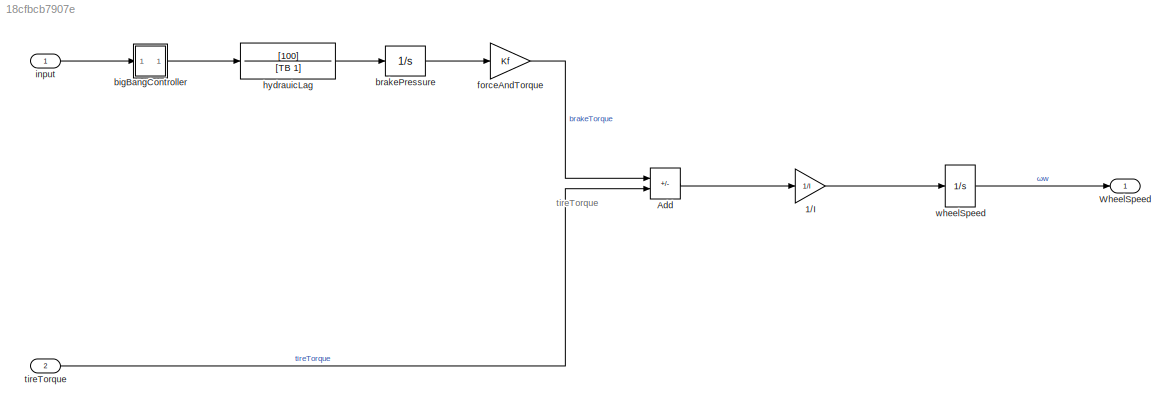
MODEL slx_18cfbcb7907e
KIND model
CONFIG AbsTol = 1e-6
CONFIG EnableMultiTasking = off
CONFIG FixedStep = auto
CONFIG InitFcn = g = 32.18;\nv0 = 88;\nRr = 15/12;  \nKf = 1;\nm = 50;\nPBmax = 1500;\nTB = 0.01;\nI = 5;\n\nslip = (0:.05:1.0); \nmu = [0 .4 .8 .97 1.0 .98 .96 .94 .92 .9 .88 .855 .83 .81 .79 .77 .75 .73 .72 .71 .7];\nctrl = 1;
CONFIG MaxStep = 0.01
CONFIG MinStep = auto
CONFIG PostLoadFcn = g = 32.18;\nv0 = 88;\nRr = 15/12;  \nKf = 1;\nm = 50;\nPBmax = 1500;\nTB = 0.01;\nI = 5;\n\nslip = (0:.05:1.0); \nmu = [0 .4 .8 .97 1.0 .98 .96 .94 .92 .9 .88 .855 .83 .81 .79 .77 .75 .73 .72 .71 .7];\nctrl = 1;
CONFIG RelTol = 1e-3
CONFIG SampleTimeConstraint = Unconstrained
CONFIG SolverName = ode45
CONFIG StartTime = 0.0
CONFIG StopTime = 25
BLOCK [Gain] 1//I
  Gain = 1/I
  OutDataTypeStr = Inherit: Same as input
  ParamDataTypeStr = Inherit: Same as input
  SaturateOnIntegerOverflow = on
BLOCK [Sum] Add
  IconShape = rectangular
  Inputs = -+
  Ports = [2, 1]
BLOCK [Outport] WheelSpeed
  OutDataTypeStr = double
  PortDimensions = 1
  SampleTime = 0
  SamplingMode = Sample based
  SignalType = real
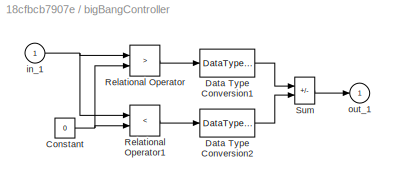
BLOCK [SubSystem] bigBangController
  Ports = [1, 1]
  RequestExecContextInheritance = off
  ShowPortLabels = none
BLOCK [Constant] bigBangController/Constant
  Value = 0
BLOCK [DataTypeConversion] bigBangController/Data Type Conversion1
  OutDataTypeStr = double
BLOCK [DataTypeConversion] bigBangController/Data Type Conversion2
  OutDataTypeStr = double
BLOCK [RelationalOperator] bigBangController/Relational Operator
  Operator = >
  OutDataTypeStr = boolean
  Ports = [2, 1]
BLOCK [RelationalOperator] bigBangController/Relational Operator1
  Operator = <
  OutDataTypeStr = boolean
  Ports = [2, 1]
BLOCK [Sum] bigBangController/Sum
  IconShape = rectangular
  InputSameDT = on
  Inputs = +-
  OutDataTypeStr = Inherit: Same as first input
  Ports = [2, 1]
  SaturateOnIntegerOverflow = on
BLOCK [Inport] bigBangController/in_1
BLOCK [Outport] bigBangController/out_1
  InitialOutput = 0
  VectorParamsAs1DForOutWhenUnconnected = off
BLOCK [Integrator] brakePressure
  LimitOutput = on
  LowerSaturationLimit = 0
  Ports = [1, 1]
  UpperSaturationLimit = PBmax
BLOCK [Gain] forceAndTorque
  Gain = Kf
  OutDataTypeStr = Inherit: Same as input
  ParamDataTypeStr = Inherit: Same as input
  SaturateOnIntegerOverflow = on
BLOCK [TransferFcn] hydrauicLag
  Denominator = [TB 1]
  Numerator = [100]
BLOCK [Inport] input
  OutDataTypeStr = double
  PortDimensions = 1
  SampleTime = 0
  SamplingMode = Sample based
  SignalType = real
BLOCK [Inport] tireTorque
  OutDataTypeStr = double
  Port = 2
  PortDimensions = 1
  SampleTime = 0
  SamplingMode = Sample based
  SignalType = real
BLOCK [Integrator] wheelSpeed
  InitialCondition = v0/Rr
  LimitOutput = on
  LowerSaturationLimit = 0
  Ports = [1, 1]
  UpperSaturationLimit = 1000
ANNOTATION (root): tireTorque
LINE 1//I:1 -> wheelSpeed:1
LINE Add:1 -> 1//I:1
NET bigBangController/Constant:1 -> bigBangController/Relational Operator1:2, bigBangController/Relational Operator:2
LINE bigBangController/Data Type Conversion1:1 -> bigBangController/Sum:1
LINE bigBangController/Data Type Conversion2:1 -> bigBangController/Sum:2
LINE bigBangController/Relational Operator1:1 -> bigBangController/Data Type Conversion2:1
LINE bigBangController/Relational Operator:1 -> bigBangController/Data Type Conversion1:1
LINE bigBangController/Sum:1 -> bigBangController/out_1:1
NET bigBangController/in_1:1 -> bigBangController/Relational Operator1:1, bigBangController/Relational Operator:1
LINE bigBangController:1 -> hydrauicLag:1
LINE brakePressure:1 -> forceAndTorque:1
LINE forceAndTorque:1 -> Add:1
LINE hydrauicLag:1 -> brakePressure:1
LINE input:1 -> bigBangController:1
LINE tireTorque:1 -> Add:2
LINE wheelSpeed:1 -> WheelSpeed:1
note: NET lines group one-source signal fan-out (src -> all destinations, sorted); 1:1 wires keep LINE
